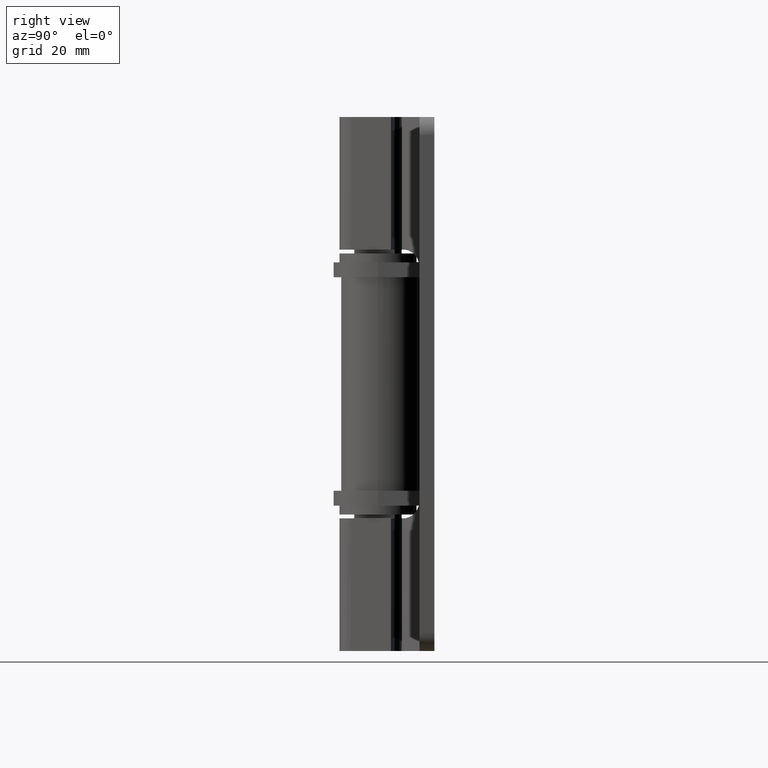
[diagram: clean part render]
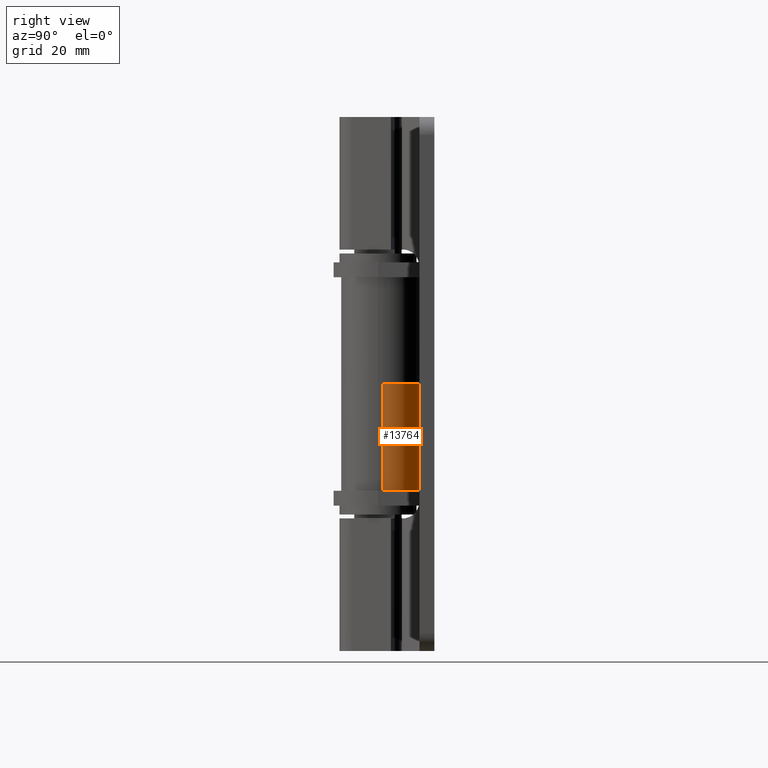
[diagram: same view with one face highlighted and labeled with its STEP entity id]
A machine part, right view. The second image highlights one B-rep face of the part: STEP entity #13764.
In plain terms, the highlighted face is a freeform B-spline surface patch.
Its self-contained STEP definition (entity closure, byte-faithful):
#13687=CARTESIAN_POINT('',(6.200000000003390,0.799999999996467,27.0));
#13688=VERTEX_POINT('',#13687);
#13694=CARTESIAN_POINT('',(6.200000000003390,0.799999999996467,45.0));
#13695=VERTEX_POINT('',#13694);
#13696=CARTESIAN_POINT('',(6.200000000003390,0.799999999996467,45.0));
#13697=CARTESIAN_POINT('',(6.200000000003390,0.799999999996467,27.0));
#13698=QUASI_UNIFORM_CURVE('',1,(#13696,#13697),.UNSPECIFIED.,.F.,.U.);
#13699=EDGE_CURVE('',#13695,#13688,#13698,.T.);
#13710=CARTESIAN_POINT('',(6.194098973810908,0.529559798331243,45.450000000000010));
#13711=CARTESIAN_POINT('',(6.194098973810908,0.529559798331243,26.538750000000000));
#13712=CARTESIAN_POINT('',(6.497193843806649,7.471573639646057,45.450000000000010));
#13713=CARTESIAN_POINT('',(6.497193843806649,7.471573639646057,26.538750000000011));
#13714=CARTESIAN_POINT('',(-0.434360170669992,6.984766062037656,45.450000000000010));
#13715=CARTESIAN_POINT('',(-0.434360170669992,6.984766062037656,26.538749999999990));
#13723=(BOUNDED_SURFACE()B_SPLINE_SURFACE(1,2,((#13710,#13712,#13714),(#13711,#13713,#13715)),.UNSPECIFIED.,.F.,.F.,.U.)B_SPLINE_SURFACE_WITH_KNOTS((2,2),(3,3),(0.0,18.911250000000020),(0.0,11.108803747026240),.UNSPECIFIED.)GEOMETRIC_REPRESENTATION_ITEM()RATIONAL_B_SPLINE_SURFACE(((1.0,0.664513898535122,0.996233561259061),(1.0,0.664513898535122,0.996233561259061)))REPRESENTATION_ITEM('')SURFACE());
#13724=CARTESIAN_POINT('',(7.993606E-014,7.0,27.0));
#13725=VERTEX_POINT('',#13724);
#13726=CARTESIAN_POINT('',(7.993606E-014,7.0,27.0));
#13727=CARTESIAN_POINT('',(0.481880469850533,7.000099295948282,26.999999999999961));
#13728=CARTESIAN_POINT('',(1.217312053768554,6.913794259756254,27.000000000000071));
#13729=CARTESIAN_POINT('',(2.433143093150546,6.545068940658452,26.999999999999972));
#13730=CARTESIAN_POINT('',(3.473971762803688,5.996968940508031,27.000000000000050));
#13731=CARTESIAN_POINT('',(4.365685668367989,5.237017882320712,26.999999999999940));
#13732=CARTESIAN_POINT('',(5.029591417147192,4.467432267861208,27.000000000000188));
#13733=CARTESIAN_POINT('',(5.528845267665137,3.668184126322446,26.999999999999570));
#13734=CARTESIAN_POINT('',(6.044730958210361,2.422954998467909,27.000000000000430));
#13735=CARTESIAN_POINT('',(6.200401306393704,1.459469312078916,26.999999999999719));
#13736=CARTESIAN_POINT('',(6.200000000003390,0.799999999996467,27.0));
#13737=B_SPLINE_CURVE_WITH_KNOTS('',3,(#13726,#13727,#13728,#13729,#13730,#13731,#13732,#13733,#13734,#13735,#13736),.UNSPECIFIED.,.F.,.U.,(4,1,1,1,1,1,1,1,4),(0.000000084669932,1.445616935332410,2.206491057096724,3.804304752303678,4.945560182563748,5.706418637945122,6.847731974807918,7.760765566802440,9.738998333833900),.UNSPECIFIED.);
#13738=EDGE_CURVE('',#13725,#13688,#13737,.T.);
#13739=ORIENTED_EDGE('',*,*,#13738,.F.);
#13740=CARTESIAN_POINT('',(7.993606E-014,7.0,45.0));
#13741=VERTEX_POINT('',#13740);
#13742=CARTESIAN_POINT('',(7.993606E-014,7.0,45.0));
#13743=CARTESIAN_POINT('',(7.993606E-014,7.0,27.0));
#13744=QUASI_UNIFORM_CURVE('',1,(#13742,#13743),.UNSPECIFIED.,.F.,.U.);
#13745=EDGE_CURVE('',#13741,#13725,#13744,.T.);
#13746=ORIENTED_EDGE('',*,*,#13745,.F.);
#13747=CARTESIAN_POINT('',(7.993606E-014,7.0,45.0));
#13748=CARTESIAN_POINT('',(0.405788399428354,7.000050709444673,45.000000000000043));
#13749=CARTESIAN_POINT('',(1.141263111018741,6.927531790205142,45.000000000000078));
#13750=CARTESIAN_POINT('',(2.071452438974597,6.663939984950702,45.000000000000057));
#13751=CARTESIAN_POINT('',(2.979568712009782,6.268102874163211,44.999999999999943));
#13752=CARTESIAN_POINT('',(3.837942040188085,5.717132199472684,45.000000000000227));
#13753=CARTESIAN_POINT('',(4.649094975980678,4.944777427670996,44.999999999999787));
#13754=CARTESIAN_POINT('',(5.367416034159001,3.988741411334146,45.000000000000092));
#13755=CARTESIAN_POINT('',(6.012056102251156,2.625872126662245,45.0));
#13756=CARTESIAN_POINT('',(6.200374014056569,1.459445402075987,44.999999999999822));
#13757=CARTESIAN_POINT('',(6.200000000003390,0.799999999996467,45.0));
#13758=B_SPLINE_CURVE_WITH_KNOTS('',3,(#13747,#13748,#13749,#13750,#13751,#13752,#13753,#13754,#13755,#13756,#13757),.UNSPECIFIED.,.F.,.U.,(4,1,1,1,1,1,1,1,4),(0.000000084669932,1.217364097896908,2.206491057096724,2.891267360907323,4.184730244644526,5.249917479217076,6.239038823929883,7.760765566802440,9.738998333833900),.UNSPECIFIED.);
#13759=EDGE_CURVE('',#13741,#13695,#13758,.T.);
#13760=ORIENTED_EDGE('',*,*,#13759,.T.);
#13761=ORIENTED_EDGE('',*,*,#13699,.T.);
#13762=EDGE_LOOP('',(#13739,#13746,#13760,#13761));
#13763=FACE_OUTER_BOUND('',#13762,.T.);
#13764=ADVANCED_FACE('',(#13763),#13723,.T.);